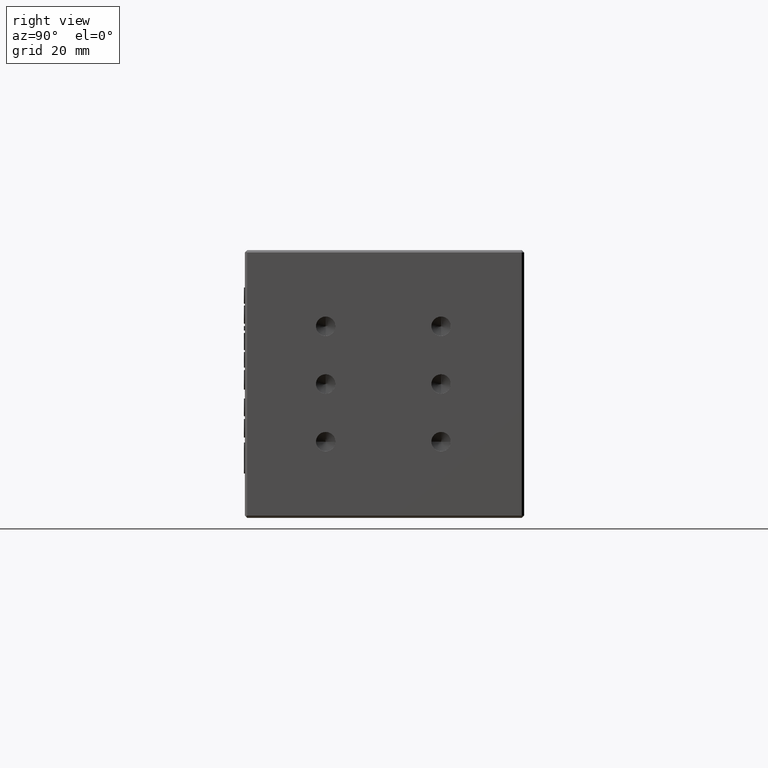
[diagram: clean part render]
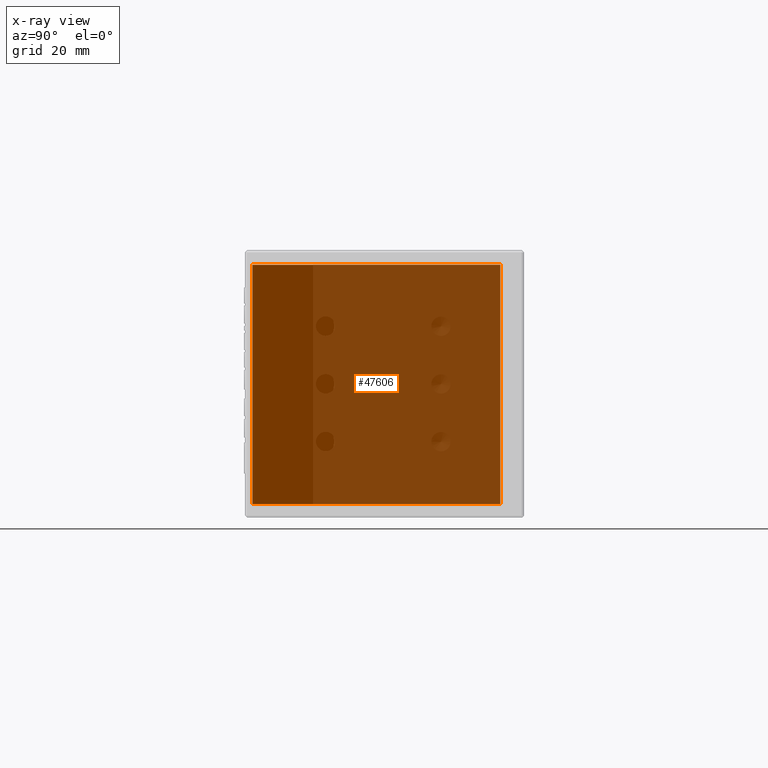
[diagram: x-ray — body ghosted, one internal face saturated and labeled with its STEP entity id]
A machine part, right view, then the same camera in x-ray: the body is ghosted and one INTERNAL B-rep face — a face not visible from any outside direction — is saturated and labeled: STEP entity #47606.
In plain terms, the highlighted planar face has unit normal (0.7071, 0.7071, -0).
Its self-contained STEP definition (entity closure, byte-faithful):
#1657 = DIRECTION ( 'NONE',  ( 0.7071067811865451300, -0.7071067811865500200, -7.850462293418873400E-017 ) ) ;
#2946 = DIRECTION ( 'NONE',  ( -0.7071067811865451300, 0.7071067811865500200, 7.850462293418873400E-017 ) ) ;
#3529 = LINE ( 'NONE', #14049, #31771 ) ;
#4030 = ORIENTED_EDGE ( 'NONE', *, *, #53712, .T. ) ;
#9637 = VERTEX_POINT ( 'NONE', #27376 ) ;
#10647 = CARTESIAN_POINT ( 'NONE',  ( 27.42575077608849900, -6.126991158258234400, 28.90000000000954800 ) ) ;
#13199 = VECTOR ( 'NONE', #2946, 1000.000000000000100 ) ;
#14049 = CARTESIAN_POINT ( 'NONE',  ( -26.31436459408893200, 47.61312421191956200, 28.90000000000955200 ) ) ;
#15970 = DIRECTION ( 'NONE',  ( -5.551115123125762400E-017, 5.551115123125800000E-017, -1.000000000000000000 ) ) ;
#18889 = EDGE_CURVE ( 'NONE', #29868, #62587, #28248, .T. ) ;
#24882 = EDGE_CURVE ( 'NONE', #9637, #40639, #53805, .T. ) ;
#25582 = CARTESIAN_POINT ( 'NONE',  ( 0.5556930909997884700, 20.74306652683066000, 54.80000000000956100 ) ) ;
#25708 = LINE ( 'NONE', #10647, #64558 ) ;
#27376 = CARTESIAN_POINT ( 'NONE',  ( 27.42575077608849900, -6.126991158258230800, 3.000000000009547000 ) ) ;
#28248 = LINE ( 'NONE', #25582, #68787 ) ;
#29868 = VERTEX_POINT ( 'NONE', #62694 ) ;
#31771 = VECTOR ( 'NONE', #34955, 1000.000000000000000 ) ;
#32042 = ORIENTED_EDGE ( 'NONE', *, *, #24882, .T. ) ;
#32764 = FACE_OUTER_BOUND ( 'NONE', #57304, .T. ) ;
#33465 = DIRECTION ( 'NONE',  ( 0.7071067811865500200, 0.7071067811865451300, -6.162975822039154700E-033 ) ) ;
#34775 = CARTESIAN_POINT ( 'NONE',  ( 0.5556930909997855900, 20.74306652683066300, 3.000000000009550600 ) ) ;
#34955 = DIRECTION ( 'NONE',  ( 5.551115123125762400E-017, -5.551115123125800000E-017, 1.000000000000000000 ) ) ;
#40639 = VERTEX_POINT ( 'NONE', #54309 ) ;
#41695 = DIRECTION ( 'NONE',  ( 0.7071067811865451300, -0.7071067811865500200, -7.850462293418873400E-017 ) ) ;
#44452 = CARTESIAN_POINT ( 'NONE',  ( 27.42575077608849900, -6.126991158258234400, 54.80000000000956100 ) ) ;
#45355 = AXIS2_PLACEMENT_3D ( 'NONE', #65111, #33465, #1657 ) ;
#47606 = ADVANCED_FACE ( 'NONE', ( #32764 ), #64667, .T. ) ;
#52583 = EDGE_CURVE ( 'NONE', #40639, #29868, #3529, .T. ) ;
#53141 = ORIENTED_EDGE ( 'NONE', *, *, #52583, .T. ) ;
#53712 = EDGE_CURVE ( 'NONE', #62587, #9637, #25708, .T. ) ;
#53805 = LINE ( 'NONE', #34775, #13199 ) ;
#54309 = CARTESIAN_POINT ( 'NONE',  ( -26.31436459408893200, 47.61312421191956900, 3.000000000009554100 ) ) ;
#57304 = EDGE_LOOP ( 'NONE', ( #4030, #32042, #53141, #64348 ) ) ;
#62587 = VERTEX_POINT ( 'NONE', #44452 ) ;
#62694 = CARTESIAN_POINT ( 'NONE',  ( -26.31436459408893200, 47.61312421191956200, 54.80000000000956800 ) ) ;
#64348 = ORIENTED_EDGE ( 'NONE', *, *, #18889, .T. ) ;
#64558 = VECTOR ( 'NONE', #15970, 1000.000000000000000 ) ;
#64667 = PLANE ( 'NONE',  #45355 ) ;
#65111 = CARTESIAN_POINT ( 'NONE',  ( 0.5556930909997870300, 20.74306652683066000, 28.90000000000954800 ) ) ;
#68787 = VECTOR ( 'NONE', #41695, 1000.000000000000100 ) ;